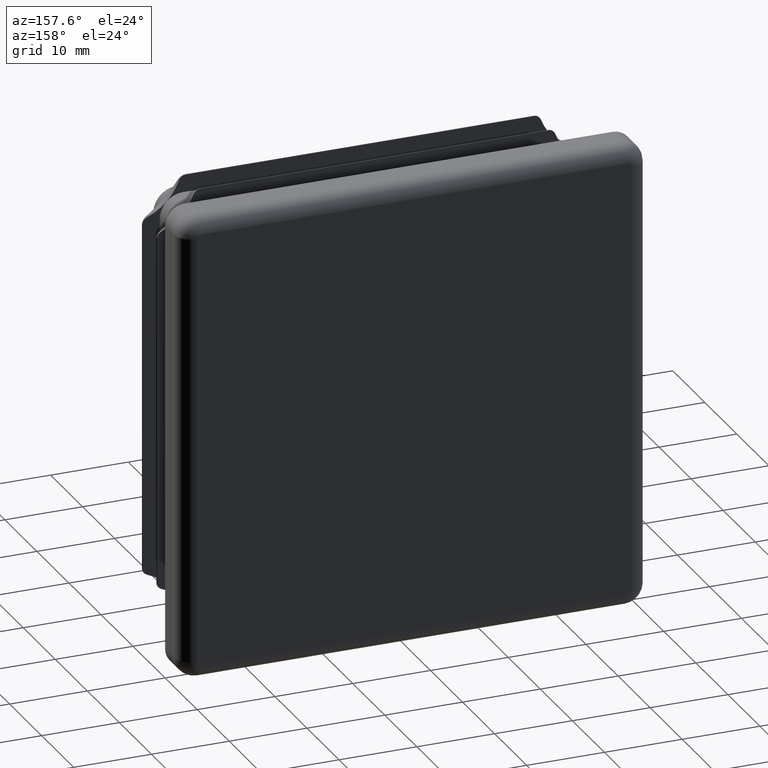
[diagram: clean part render]
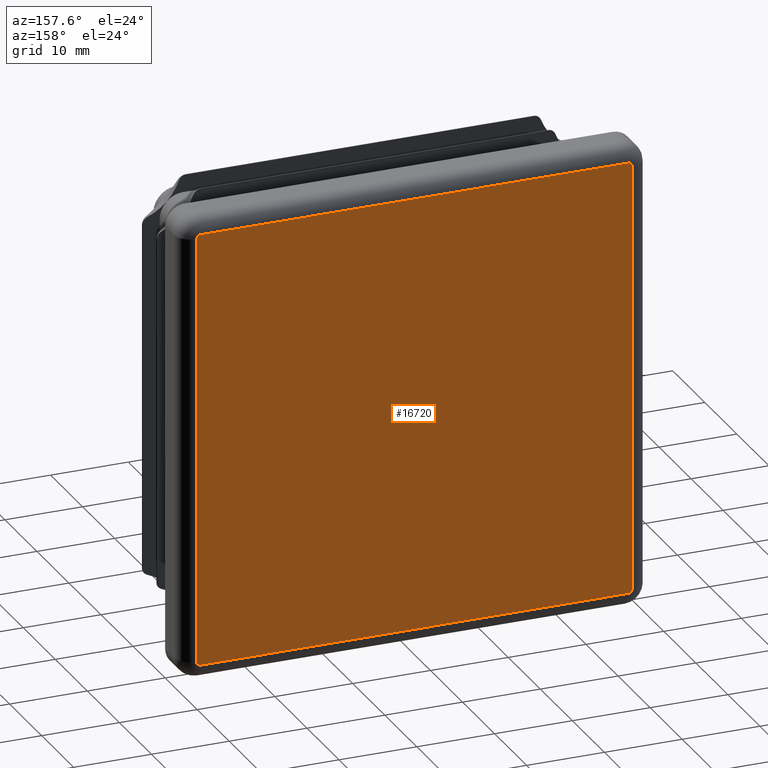
[diagram: same view with one face highlighted and labeled with its STEP entity id]
A machine part, auxiliary view. The second image highlights one B-rep face of the part: STEP entity #16720.
In plain terms, the highlighted planar face has unit normal (0, 1, 0).
Its self-contained STEP definition (entity closure, byte-faithful):
#118 = VECTOR ( 'NONE', #3976, 1000.000000000000000 ) ;
#698 = CIRCLE ( 'NONE', #16725, 0.5000000000000004441 ) ;
#856 = DIRECTION ( 'NONE',  ( 0.000000000000000000, 0.000000000000000000, 1.000000000000000000 ) ) ;
#994 = AXIS2_PLACEMENT_3D ( 'NONE', #22034, #11437, #2767 ) ;
#1645 = CIRCLE ( 'NONE', #14689, 0.5000000000000004441 ) ;
#1730 = CARTESIAN_POINT ( 'NONE',  ( 0.000000000000000000, 5.000000000000000000, 0.000000000000000000 ) ) ;
#1805 = DIRECTION ( 'NONE',  ( 0.000000000000000000, -0.000000000000000000, 1.000000000000000000 ) ) ;
#1880 = VECTOR ( 'NONE', #9241, 1000.000000000000000 ) ;
#2767 = DIRECTION ( 'NONE',  ( 0.000000000000000000, 0.000000000000000000, 1.000000000000000000 ) ) ;
#2864 = EDGE_CURVE ( 'NONE', #9580, #6099, #8701, .T. ) ;
#2991 = CARTESIAN_POINT ( 'NONE',  ( -27.99999999999998934, 5.000000000000000000, 27.49999999999999645 ) ) ;
#3008 = CARTESIAN_POINT ( 'NONE',  ( -27.49999999999999289, 5.000000000000000000, 28.00000000000000000 ) ) ;
#3658 = EDGE_CURVE ( 'NONE', #6099, #6405, #698, .T. ) ;
#3808 = CARTESIAN_POINT ( 'NONE',  ( -28.00000000000000000, 5.000000000000000000, -27.50000000000000000 ) ) ;
#3976 = DIRECTION ( 'NONE',  ( 1.000000000000000000, -0.000000000000000000, 0.000000000000000000 ) ) ;
#4079 = LINE ( 'NONE', #9015, #1880 ) ;
#4152 = CARTESIAN_POINT ( 'NONE',  ( -27.49999999999999289, 5.000000000000000000, 27.50000000000000000 ) ) ;
#4245 = ORIENTED_EDGE ( 'NONE', *, *, #5680, .T. ) ;
#4672 = CIRCLE ( 'NONE', #9621, 0.5000000000000004441 ) ;
#4778 = ORIENTED_EDGE ( 'NONE', *, *, #10283, .T. ) ;
#4935 = EDGE_CURVE ( 'NONE', #5635, #21067, #15574, .T. ) ;
#5078 = CARTESIAN_POINT ( 'NONE',  ( -27.50000000000000000, 5.000000000000000000, -27.99999999999999645 ) ) ;
#5089 = DIRECTION ( 'NONE',  ( 0.000000000000000000, 1.000000000000000000, 0.000000000000000000 ) ) ;
#5185 = ORIENTED_EDGE ( 'NONE', *, *, #2864, .T. ) ;
#5328 = LINE ( 'NONE', #14728, #118 ) ;
#5515 = ORIENTED_EDGE ( 'NONE', *, *, #4935, .T. ) ;
#5635 = VERTEX_POINT ( 'NONE', #5691 ) ;
#5680 = EDGE_CURVE ( 'NONE', #6405, #11053, #5328, .T. ) ;
#5691 = CARTESIAN_POINT ( 'NONE',  ( 27.49999999999999645, 5.000000000000000000, -28.00000000000000000 ) ) ;
#6099 = VERTEX_POINT ( 'NONE', #13071 ) ;
#6405 = VERTEX_POINT ( 'NONE', #3008 ) ;
#7646 = ORIENTED_EDGE ( 'NONE', *, *, #3658, .T. ) ;
#8543 = EDGE_CURVE ( 'NONE', #21067, #9580, #1645, .T. ) ;
#8584 = DIRECTION ( 'NONE',  ( 0.000000000000000000, 0.000000000000000000, 1.000000000000000000 ) ) ;
#8701 = LINE ( 'NONE', #2991, #20592 ) ;
#8976 = VERTEX_POINT ( 'NONE', #19515 ) ;
#9015 = CARTESIAN_POINT ( 'NONE',  ( 27.99999999999999645, 5.000000000000000000, -27.50000000000000000 ) ) ;
#9241 = DIRECTION ( 'NONE',  ( -1.156482317317871478E-16, 0.000000000000000000, -1.000000000000000000 ) ) ;
#9288 = ORIENTED_EDGE ( 'NONE', *, *, #21581, .T. ) ;
#9410 = CARTESIAN_POINT ( 'NONE',  ( -27.50000000000000000, 5.000000000000000000, -27.50000000000000000 ) ) ;
#9580 = VERTEX_POINT ( 'NONE', #3808 ) ;
#9621 = AXIS2_PLACEMENT_3D ( 'NONE', #10495, #5089, #8584 ) ;
#10283 = EDGE_CURVE ( 'NONE', #8976, #21920, #4079, .T. ) ;
#10495 = CARTESIAN_POINT ( 'NONE',  ( 27.50000000000000711, 5.000000000000000000, 27.49999999999999645 ) ) ;
#10600 = CIRCLE ( 'NONE', #994, 0.5000000000000004441 ) ;
#11053 = VERTEX_POINT ( 'NONE', #16756 ) ;
#11055 = AXIS2_PLACEMENT_3D ( 'NONE', #1730, #13936, #1805 ) ;
#11437 = DIRECTION ( 'NONE',  ( 0.000000000000000000, 1.000000000000000000, 0.000000000000000000 ) ) ;
#11816 = DIRECTION ( 'NONE',  ( 1.156482317317871478E-16, -0.000000000000000000, 1.000000000000000000 ) ) ;
#11987 = ORIENTED_EDGE ( 'NONE', *, *, #8543, .T. ) ;
#12211 = ORIENTED_EDGE ( 'NONE', *, *, #16071, .T. ) ;
#13071 = CARTESIAN_POINT ( 'NONE',  ( -27.99999999999998934, 5.000000000000000000, 27.50000000000000000 ) ) ;
#13936 = DIRECTION ( 'NONE',  ( 0.000000000000000000, 1.000000000000000000, 0.000000000000000000 ) ) ;
#14689 = AXIS2_PLACEMENT_3D ( 'NONE', #9410, #16219, #18291 ) ;
#14728 = CARTESIAN_POINT ( 'NONE',  ( 27.50000000000000355, 5.000000000000000000, 27.99999999999999645 ) ) ;
#15070 = CARTESIAN_POINT ( 'NONE',  ( 27.99999999999999645, 5.000000000000000000, -27.50000000000000000 ) ) ;
#15574 = LINE ( 'NONE', #5078, #22222 ) ;
#16071 = EDGE_CURVE ( 'NONE', #21920, #5635, #10600, .T. ) ;
#16219 = DIRECTION ( 'NONE',  ( 0.000000000000000000, 1.000000000000000000, 0.000000000000000000 ) ) ;
#16417 = FACE_OUTER_BOUND ( 'NONE', #21815, .T. ) ;
#16720 = ADVANCED_FACE ( 'NONE', ( #16417 ), #22746, .T. ) ;
#16725 = AXIS2_PLACEMENT_3D ( 'NONE', #4152, #22021, #856 ) ;
#16756 = CARTESIAN_POINT ( 'NONE',  ( 27.50000000000000711, 5.000000000000000000, 27.99999999999999645 ) ) ;
#18291 = DIRECTION ( 'NONE',  ( 0.000000000000000000, 0.000000000000000000, 1.000000000000000000 ) ) ;
#19515 = CARTESIAN_POINT ( 'NONE',  ( 28.00000000000000355, 5.000000000000000000, 27.49999999999999645 ) ) ;
#20592 = VECTOR ( 'NONE', #11816, 1000.000000000000000 ) ;
#21067 = VERTEX_POINT ( 'NONE', #22819 ) ;
#21336 = DIRECTION ( 'NONE',  ( -1.000000000000000000, 0.000000000000000000, 0.000000000000000000 ) ) ;
#21581 = EDGE_CURVE ( 'NONE', #11053, #8976, #4672, .T. ) ;
#21815 = EDGE_LOOP ( 'NONE', ( #4245, #9288, #4778, #12211, #5515, #11987, #5185, #7646 ) ) ;
#21920 = VERTEX_POINT ( 'NONE', #15070 ) ;
#22021 = DIRECTION ( 'NONE',  ( 0.000000000000000000, 1.000000000000000000, 0.000000000000000000 ) ) ;
#22034 = CARTESIAN_POINT ( 'NONE',  ( 27.49999999999999645, 5.000000000000000000, -27.50000000000000000 ) ) ;
#22222 = VECTOR ( 'NONE', #21336, 1000.000000000000000 ) ;
#22746 = PLANE ( 'NONE',  #11055 ) ;
#22819 = CARTESIAN_POINT ( 'NONE',  ( -27.50000000000000000, 5.000000000000000000, -27.99999999999999645 ) ) ;